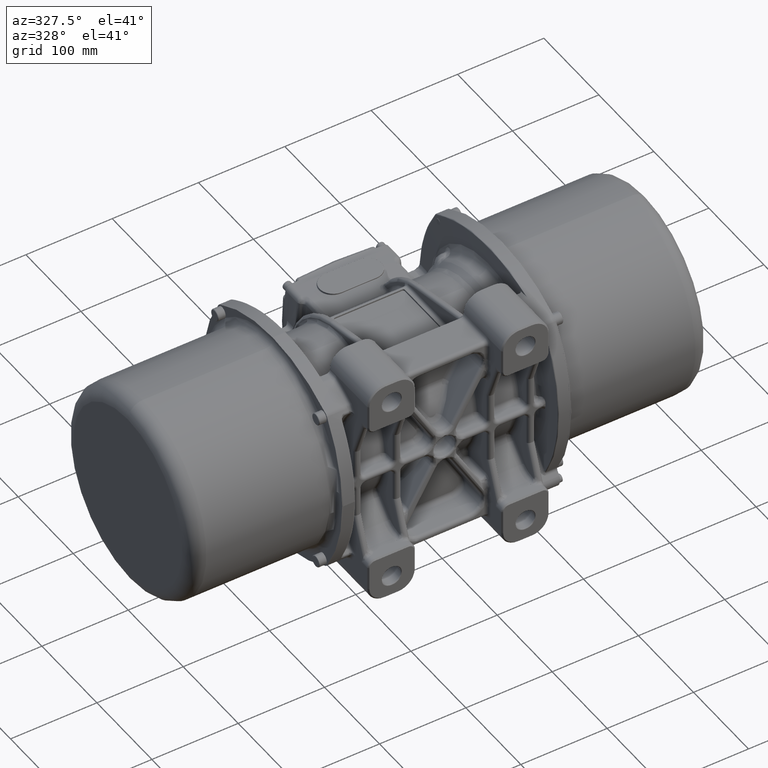
[diagram: clean part render]
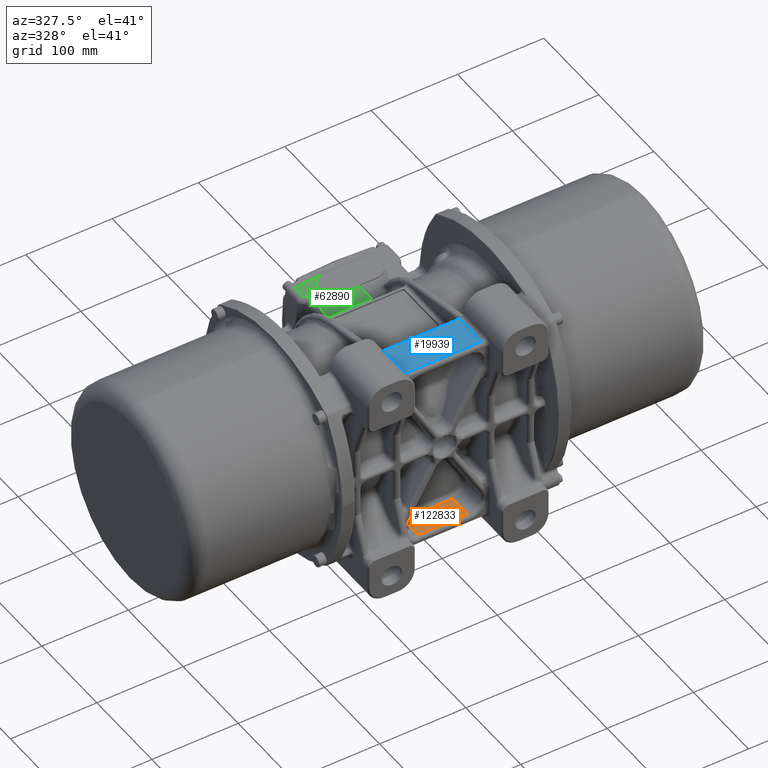
[diagram: same view with three faces highlighted in distinct colors, each labeled with its STEP entity id]
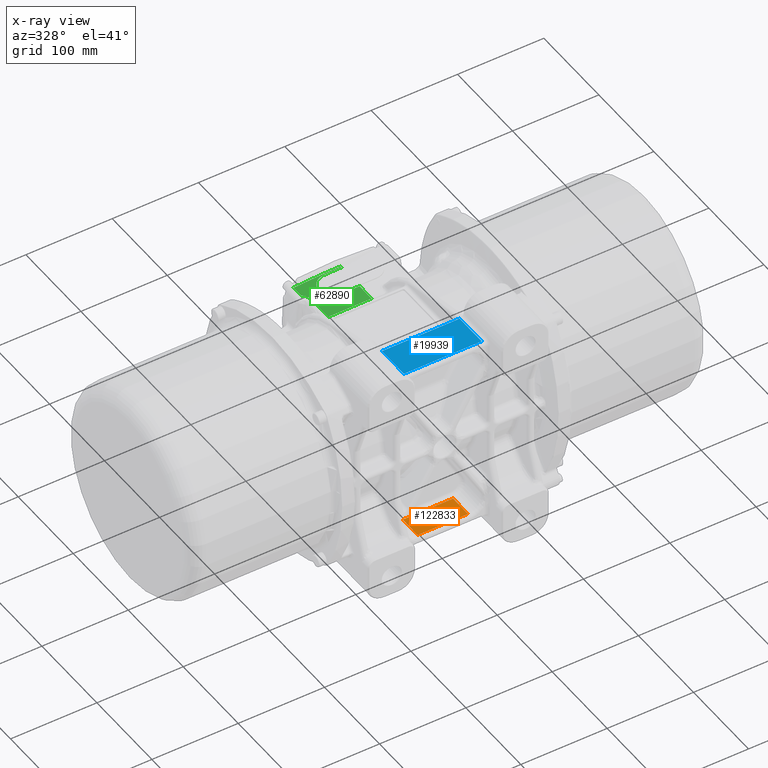
[diagram: x-ray of the same camera — body ghosted, the three highlighted faces saturated]
A machine part, auxiliary view with three faces highlighted in distinct colors.
The next image is the same camera in x-ray (body ghosted, the three faces saturated) — at least one of them is partly hidden behind the body in this view.
Their STEP definitions:

[orange] entity #122833 — the highlighted planar face has unit normal (0, 0, -1).
#3486 = EDGE_CURVE ( 'NONE', #24211, #102830, #118803, .T. ) ;
#4695 = EDGE_CURVE ( 'NONE', #82045, #102830, #26756, .T. ) ;
#9513 = EDGE_CURVE ( 'NONE', #24211, #44128, #36949, .T. ) ;
#11755 = VECTOR ( 'NONE', #12938, 1000.000000000000000 ) ;
#12758 = CARTESIAN_POINT ( 'NONE',  ( 29.15618859400000700, -101.0000000000000000, -103.5000000000006000 ) ) ;
#12938 = DIRECTION ( 'NONE',  ( -0.0000000000000000000, 1.000000000000000000, -0.0000000000000000000 ) ) ;
#20308 = EDGE_CURVE ( 'NONE', #44128, #82045, #112867, .T. ) ;
#23573 = VECTOR ( 'NONE', #54640, 1000.000000000000000 ) ;
#24211 = VERTEX_POINT ( 'NONE', #49217 ) ;
#26756 = LINE ( 'NONE', #46429, #11755 ) ;
#33808 = AXIS2_PLACEMENT_3D ( 'NONE', #137513, #127242, #105309 ) ;
#36949 = LINE ( 'NONE', #108217, #23573 ) ;
#42935 = CARTESIAN_POINT ( 'NONE',  ( -29.15618859400000700, -101.0000000000000000, -103.5000000000848400 ) ) ;
#44128 = VERTEX_POINT ( 'NONE', #12758 ) ;
#46429 = CARTESIAN_POINT ( 'NONE',  ( -29.15618859400000700, -87.50000000000000000, -103.5000000000000100 ) ) ;
#47829 = EDGE_LOOP ( 'NONE', ( #86723, #69544, #111497, #72979 ) ) ;
#49217 = CARTESIAN_POINT ( 'NONE',  ( 29.15618859400000700, -74.00000000000000000, -103.4999999999675600 ) ) ;
#54640 = DIRECTION ( 'NONE',  ( -0.0000000000000000000, -1.000000000000000000, -0.0000000000000000000 ) ) ;
#59130 = CARTESIAN_POINT ( 'NONE',  ( 0.0000000000000000000, -74.00000000000000000, -103.5000000000000100 ) ) ;
#64741 = FACE_OUTER_BOUND ( 'NONE', #47829, .T. ) ;
#69544 = ORIENTED_EDGE ( 'NONE', *, *, #3486, .T. ) ;
#72979 = ORIENTED_EDGE ( 'NONE', *, *, #20308, .F. ) ;
#81163 = VECTOR ( 'NONE', #130504, 1000.000000000000000 ) ;
#81314 = CARTESIAN_POINT ( 'NONE',  ( -29.15618859400000700, -74.00000000000000000, -103.4999999999675400 ) ) ;
#82045 = VERTEX_POINT ( 'NONE', #42935 ) ;
#86723 = ORIENTED_EDGE ( 'NONE', *, *, #9513, .F. ) ;
#94603 = PLANE ( 'NONE',  #33808 ) ;
#97880 = CARTESIAN_POINT ( 'NONE',  ( 0.0000000000000000000, -101.0000000000000000, -103.5000000000000100 ) ) ;
#101570 = DIRECTION ( 'NONE',  ( -1.000000000000000000, 0.0000000000000000000, 0.0000000000000000000 ) ) ;
#102830 = VERTEX_POINT ( 'NONE', #81314 ) ;
#105309 = DIRECTION ( 'NONE',  ( -1.000000000000000000, 0.0000000000000000000, 0.0000000000000000000 ) ) ;
#108217 = CARTESIAN_POINT ( 'NONE',  ( 29.15618859400000700, -87.50000000000000000, -103.5000000000000100 ) ) ;
#111497 = ORIENTED_EDGE ( 'NONE', *, *, #4695, .F. ) ;
#112867 = LINE ( 'NONE', #97880, #81163 ) ;
#115416 = VECTOR ( 'NONE', #101570, 1000.000000000000000 ) ;
#118803 = LINE ( 'NONE', #59130, #115416 ) ;
#122833 = ADVANCED_FACE ( 'NONE', ( #64741 ), #94603, .F. ) ;
#127242 = DIRECTION ( 'NONE',  ( 0.0000000000000000000, 0.0000000000000000000, -1.000000000000000000 ) ) ;
#130504 = DIRECTION ( 'NONE',  ( -1.000000000000000000, 0.0000000000000000000, 0.0000000000000000000 ) ) ;
#137513 = CARTESIAN_POINT ( 'NONE',  ( 29.15618859400000700, -101.0000000000000000, -103.5000000000000100 ) ) ;

[blue] entity #19939 — the highlighted planar face has unit normal (0, 0, -1).
#882 = CARTESIAN_POINT ( 'NONE',  ( -45.00000000000000000, -101.0000000000000000, 112.5000000000000000 ) ) ;
#2012 = LINE ( 'NONE', #39242, #77105 ) ;
#2548 = DIRECTION ( 'NONE',  ( 1.000000000000000000, 0.0000000000000000000, 0.0000000000000000000 ) ) ;
#6768 = EDGE_LOOP ( 'NONE', ( #87810, #121132, #102257, #131285 ) ) ;
#7989 = LINE ( 'NONE', #44330, #106472 ) ;
#9905 = PLANE ( 'NONE',  #33586 ) ;
#19246 = DIRECTION ( 'NONE',  ( 0.0000000000000000000, 1.000000000000000000, 0.0000000000000000000 ) ) ;
#19939 = ADVANCED_FACE ( 'NONE', ( #71111 ), #9905, .F. ) ;
#29469 = DIRECTION ( 'NONE',  ( 0.0000000000000000000, 0.0000000000000000000, -1.000000000000000000 ) ) ;
#33067 = DIRECTION ( 'NONE',  ( -0.0000000000000000000, -1.000000000000000000, -0.0000000000000000000 ) ) ;
#33586 = AXIS2_PLACEMENT_3D ( 'NONE', #126492, #29469, #19246 ) ;
#33623 = EDGE_CURVE ( 'NONE', #80501, #109863, #124290, .T. ) ;
#34367 = CARTESIAN_POINT ( 'NONE',  ( 0.0000000000000000000, -61.00000000000000000, 112.5000000000000000 ) ) ;
#39242 = CARTESIAN_POINT ( 'NONE',  ( -45.00000000000000000, -81.00000000000000000, 112.5000000000000000 ) ) ;
#44330 = CARTESIAN_POINT ( 'NONE',  ( 45.00000000000000000, -81.00000000000000000, 112.5000000000000000 ) ) ;
#51283 = VERTEX_POINT ( 'NONE', #109309 ) ;
#61184 = DIRECTION ( 'NONE',  ( -0.0000000000000000000, -1.000000000000000000, -0.0000000000000000000 ) ) ;
#66822 = CARTESIAN_POINT ( 'NONE',  ( 44.99999999999998600, -101.0000000000000000, 112.5000000000000100 ) ) ;
#71111 = FACE_OUTER_BOUND ( 'NONE', #6768, .T. ) ;
#77105 = VECTOR ( 'NONE', #61184, 1000.000000000000000 ) ;
#78925 = VECTOR ( 'NONE', #88564, 1000.000000000000000 ) ;
#79521 = EDGE_CURVE ( 'NONE', #136702, #109863, #7989, .T. ) ;
#80501 = VERTEX_POINT ( 'NONE', #882 ) ;
#86543 = CARTESIAN_POINT ( 'NONE',  ( 0.0000000000000000000, -101.0000000000000000, 112.5000000000000000 ) ) ;
#87810 = ORIENTED_EDGE ( 'NONE', *, *, #118417, .T. ) ;
#88564 = DIRECTION ( 'NONE',  ( -1.000000000000000000, -0.0000000000000000000, -0.0000000000000000000 ) ) ;
#89279 = VECTOR ( 'NONE', #2548, 1000.000000000000000 ) ;
#102257 = ORIENTED_EDGE ( 'NONE', *, *, #79521, .F. ) ;
#106472 = VECTOR ( 'NONE', #33067, 1000.000000000000000 ) ;
#109309 = CARTESIAN_POINT ( 'NONE',  ( -44.99999999999998600, -61.00000000000000000, 112.5000000000000000 ) ) ;
#109863 = VERTEX_POINT ( 'NONE', #66822 ) ;
#110637 = LINE ( 'NONE', #34367, #78925 ) ;
#116226 = EDGE_CURVE ( 'NONE', #136702, #51283, #110637, .T. ) ;
#118417 = EDGE_CURVE ( 'NONE', #51283, #80501, #2012, .T. ) ;
#121132 = ORIENTED_EDGE ( 'NONE', *, *, #33623, .T. ) ;
#124290 = LINE ( 'NONE', #86543, #89279 ) ;
#126492 = CARTESIAN_POINT ( 'NONE',  ( -45.00000000000000000, -101.0000000000000000, 112.5000000000000000 ) ) ;
#129688 = CARTESIAN_POINT ( 'NONE',  ( 45.00000000000000000, -61.00000000000000000, 112.5000000000000000 ) ) ;
#131285 = ORIENTED_EDGE ( 'NONE', *, *, #116226, .T. ) ;
#136702 = VERTEX_POINT ( 'NONE', #129688 ) ;

[green] entity #62890 — the highlighted cylindrical surface (partial cylindrical patch) has radius 736 mm, axis along (0, 1, -0).
#863 = CARTESIAN_POINT ( 'NONE',  ( -25.10545275765998200, 112.3267542299250900, 47.61761852174057500 ) ) ;
#1329 = CARTESIAN_POINT ( 'NONE',  ( -24.96479319164931700, 112.1740608947655900, 47.62767845040726700 ) ) ;
#1744 = CARTESIAN_POINT ( 'NONE',  ( -2.090709866972191300, 96.57696061668403300, 48.90505452337111300 ) ) ;
#1784 = CARTESIAN_POINT ( 'NONE',  ( -23.52303971844241600, 110.2356238688346400, 47.72929016975006500 ) ) ;
#2195 = CARTESIAN_POINT ( 'NONE',  ( -7.306785199317577200, 102.6882611386606400, 48.67661633649058200 ) ) ;
#2654 = CARTESIAN_POINT ( 'NONE',  ( -3.459443011328273700, 97.67880792350189300, 48.84861319280678100 ) ) ;
#3465 = EDGE_CURVE ( 'NONE', #125752, #26187, #32000, .T. ) ;
#3575 = CARTESIAN_POINT ( 'NONE',  ( 4.934489858880654700, 93.70216031952709600, 49.15401176382651700 ) ) ;
#4484 = CARTESIAN_POINT ( 'NONE',  ( -8.973362677187996200, 109.7197137528856800, 48.59570385521973200 ) ) ;
#4643 = DIRECTION ( 'NONE',  ( -0.0000000000000000000, -1.000000000000000000, -0.0000000000000000000 ) ) ;
#4932 = DIRECTION ( 'NONE',  ( 0.0000000000000000000, 1.000000000000000000, -0.0000000000000000000 ) ) ;
#4949 = CARTESIAN_POINT ( 'NONE',  ( -8.423331978783332700, 114.2679095427269500, 48.62280505161395900 ) ) ;
#5373 = VECTOR ( 'NONE', #123457, 1000.000000000000000 ) ;
#5817 = VERTEX_POINT ( 'NONE', #23329 ) ;
#5839 = CARTESIAN_POINT ( 'NONE',  ( 3.359415826246922300, 125.9718608060488000, 49.10407251818134700 ) ) ;
#7490 = VERTEX_POINT ( 'NONE', #21404 ) ;
#8949 = B_SPLINE_CURVE_WITH_KNOTS ( 'NONE', 3,
 ( #48452, #58696, #112788, #48908, #123537, #89546, #25570, #110960, #124883, #113697, #113247, #71266, #123972, #136058, #19017 ),
 .UNSPECIFIED., .F., .F.,
 ( 4, 2, 1, 1, 1, 1, 1, 2, 2, 4 ),
 ( 0.0000000000000000000, 0.2499999999999995600, 0.3749999999999993300, 0.4374999999999992200, 0.4687499999999991700, 0.4843749999999991100, 0.4921874999999991100, 0.4960937499999991100, 0.4999999999999991100, 1.000000000000000000 ),
 .UNSPECIFIED. ) ;
#10204 = CARTESIAN_POINT ( 'NONE',  ( -26.55234854487459000, 113.6403680777951600, 47.51260061480324700 ) ) ;
#11155 = CARTESIAN_POINT ( 'NONE',  ( -21.84378253900076300, 104.1692854380000200, 47.84405500701146300 ) ) ;
#11616 = CARTESIAN_POINT ( 'NONE',  ( -24.18844981847097800, 111.2510538558887700, 47.68280856270374100 ) ) ;
#12081 = CARTESIAN_POINT ( 'NONE',  ( -24.56115182170309600, 111.7183312861399700, 47.65645955422977000 ) ) ;
#12509 = CARTESIAN_POINT ( 'NONE',  ( -1.630239695819746300, 96.26948782626202200, 48.92329929086037800 ) ) ;
#12559 = CARTESIAN_POINT ( 'NONE',  ( -23.45703423271695000, 110.1234285805032000, 47.73387331975546700 ) ) ;
#12972 = CARTESIAN_POINT ( 'NONE',  ( -8.760993202309443000, 107.3063104659177900, 48.60621800320312500 ) ) ;
#12985 = CARTESIAN_POINT ( 'NONE',  ( 27.50000000000000400, 128.0000000000000000, 49.49999999988730100 ) ) ;
#13018 = CARTESIAN_POINT ( 'NONE',  ( -24.83039327393099100, 112.0238562565852600, 47.63726915106818200 ) ) ;
#13432 = CARTESIAN_POINT ( 'NONE',  ( -4.062191724461687400, 98.24961850863864800, 48.82294202899856100 ) ) ;
#13896 = CARTESIAN_POINT ( 'NONE',  ( 7.513577733007031700, 93.50000000000000000, 49.22857965774454700 ) ) ;
#14896 = AXIS2_PLACEMENT_3D ( 'NONE', #26306, #4932, #122027 ) ;
#15274 = CARTESIAN_POINT ( 'NONE',  ( 0.2106088235675071000, 124.7960197740952000, 48.99394886385437800 ) ) ;
#17734 = B_SPLINE_CURVE_WITH_KNOTS ( 'NONE', 3,
 ( #62901, #10204, #96896, #43776, #863, #1329, #22739, #85771, #64265, #65670, #13018, #12081, #11616, #75032, #64712, #1784, #97827, #12559, #107656, #128181, #118406, #34347, #108099, #22296, #107199, #119329, #76430, #23186, #86226, #44241, #21843, #86702, #54532, #33898, #23655, #11155 ),
 .UNSPECIFIED., .F., .F.,
 ( 4, 1, 1, 1, 1, 1, 1, 2, 2, 1, 1, 1, 1, 1, 1, 1, 2, 2, 2, 1, 1, 1, 1, 1, 2, 2, 4 ),
 ( 0.0000000000000000000, 0.1250000000000982500, 0.1875000000001473800, 0.2187500000001735600, 0.2343750000001856800, 0.2421875000001917400, 0.2460937500001964000, 0.2480468750002004200, 0.2500000000002044500, 0.3750000000004029000, 0.4375000000005036500, 0.4687500000005543300, 0.4843750000005780900, 0.4921875000005896400, 0.4960937500005951900, 0.4980468750005975800, 0.4990234375005966300, 0.5000000000005957500, 0.6250000000002929900, 0.6875000000001430000, 0.7187500000000680600, 0.7343750000000304200, 0.7421875000000132100, 0.7460937500000060000, 0.7480468750000038900, 0.7500000000000017800, 1.000000000000000000 ),
 .UNSPECIFIED. ) ;
#17915 = ORIENTED_EDGE ( 'NONE', *, *, #77156, .T. ) ;
#19017 = CARTESIAN_POINT ( 'NONE',  ( 27.50000000000413900, 71.62227307218196900, 49.50001045921511900 ) ) ;
#20903 = VERTEX_POINT ( 'NONE', #82407 ) ;
#21404 = CARTESIAN_POINT ( 'NONE',  ( -21.84378253900064200, 72.86078969900000900, 47.84405500700955100 ) ) ;
#21843 = CARTESIAN_POINT ( 'NONE',  ( -22.16451277012623300, 106.8919896915812700, 47.82243338695244700 ) ) ;
#22296 = CARTESIAN_POINT ( 'NONE',  ( -22.88936271656200800, 109.0565764444602200, 47.77308120876056600 ) ) ;
#22700 = CARTESIAN_POINT ( 'NONE',  ( 4.511688411890310700, 93.77572855142965100, 49.14090269131457200 ) ) ;
#22739 = CARTESIAN_POINT ( 'NONE',  ( -24.89525745653976700, 112.0968848444927600, 47.63264311283477100 ) ) ;
#23143 = CARTESIAN_POINT ( 'NONE',  ( -4.135944902037358000, 98.32292035444426400, 48.81977193986497100 ) ) ;
#23186 = CARTESIAN_POINT ( 'NONE',  ( -22.21670790907480600, 107.1047879127386600, 47.81890178147767800 ) ) ;
#23329 = CARTESIAN_POINT ( 'NONE',  ( -26.94401290300092800, 128.0000000000000000, 47.48354849299991500 ) ) ;
#23611 = CARTESIAN_POINT ( 'NONE',  ( -0.6377290729896173400, 95.64992956079484500, 48.96204227933919400 ) ) ;
#23655 = CARTESIAN_POINT ( 'NONE',  ( -21.84378253900898100, 105.0721591934647000, 47.84405500713505400 ) ) ;
#24518 = CARTESIAN_POINT ( 'NONE',  ( -1.608237073122044300, 96.25483410064617800, 48.92417057782819300 ) ) ;
#24975 = CARTESIAN_POINT ( 'NONE',  ( -0.5123538213807458100, 124.4314171848726900, 48.96699949779180400 ) ) ;
#24976 = AXIS2_PLACEMENT_3D ( 'NONE', #100488, #122435, #90698 ) ;
#25570 = CARTESIAN_POINT ( 'NONE',  ( 1.044712505033569300, 71.98558951501155400, 49.02468802758397700 ) ) ;
#25865 = CARTESIAN_POINT ( 'NONE',  ( 27.50000000000000400, 71.28400671000000000, 49.49999999988730100 ) ) ;
#25889 = CARTESIAN_POINT ( 'NONE',  ( 1.694844443101575700, 125.4479142993394300, 49.04764799063460100 ) ) ;
#26187 = VERTEX_POINT ( 'NONE', #69679 ) ;
#26306 = CARTESIAN_POINT ( 'NONE',  ( 27.50000000000000400, 126.4999999999998900, -686.4999999230257100 ) ) ;
#26329 = CARTESIAN_POINT ( 'NONE',  ( -8.837363686212244200, 112.1474656286406500, 48.60244019134082500 ) ) ;
#27370 = DIRECTION ( 'NONE',  ( 0.0000000000000000000, 1.000000000000000000, -0.0000000000000000000 ) ) ;
#27970 = CIRCLE ( 'NONE', #14896, 735.9999999229129300 ) ;
#28747 = LINE ( 'NONE', #37608, #5373 ) ;
#28927 = VERTEX_POINT ( 'NONE', #44062 ) ;
#32000 = LINE ( 'NONE', #48898, #42071 ) ;
#33395 = CARTESIAN_POINT ( 'NONE',  ( 0.3960534397387626100, 95.08919572345979500, 49.00119033489625100 ) ) ;
#33674 = FACE_OUTER_BOUND ( 'NONE', #64014, .T. ) ;
#33854 = CARTESIAN_POINT ( 'NONE',  ( -4.906386059568984800, 99.09392466490784600, 48.78661398898912400 ) ) ;
#33898 = CARTESIAN_POINT ( 'NONE',  ( -21.94789801782238200, 105.9678648342190600, 47.83708127524835900 ) ) ;
#34306 = CARTESIAN_POINT ( 'NONE',  ( -8.951315156347702000, 109.0480017905035100, 48.59679759954866500 ) ) ;
#34347 = CARTESIAN_POINT ( 'NONE',  ( -23.43754787963412400, 110.0898432399868100, 47.73522540180042000 ) ) ;
#35245 = CARTESIAN_POINT ( 'NONE',  ( 1.986910871423518200, 94.45451353302792100, 49.05766757254305300 ) ) ;
#35703 = CARTESIAN_POINT ( 'NONE',  ( 2.453739289885574300, 125.7202749968369100, 49.07402686246519600 ) ) ;
#36624 = CARTESIAN_POINT ( 'NONE',  ( -8.553734412987537900, 113.7460040102667700, 48.61641208516468300 ) ) ;
#37083 = CARTESIAN_POINT ( 'NONE',  ( 6.424549701727252100, 126.4999999999999700, 49.19899568490453100 ) ) ;
#37608 = CARTESIAN_POINT ( 'NONE',  ( -26.94401290299999700, 99.64200335500001400, 47.48354849299999400 ) ) ;
#39133 = VERTEX_POINT ( 'NONE', #12985 ) ;
#39486 = VERTEX_POINT ( 'NONE', #44495 ) ;
#40627 = ORIENTED_EDGE ( 'NONE', *, *, #110650, .T. ) ;
#41025 = LINE ( 'NONE', #121755, #112786 ) ;
#42071 = VECTOR ( 'NONE', #27370, 1000.000000000000000 ) ;
#43776 = CARTESIAN_POINT ( 'NONE',  ( -25.39312403713213900, 112.6255058386994100, 47.59697311489333100 ) ) ;
#44062 = CARTESIAN_POINT ( 'NONE',  ( -26.94401290297257000, 113.9160797830000100, 47.48354849313117400 ) ) ;
#44194 = CARTESIAN_POINT ( 'NONE',  ( -1.634638464899101000, 96.27242206875678200, 48.92312504170679700 ) ) ;
#44241 = CARTESIAN_POINT ( 'NONE',  ( -22.17085841140450200, 106.9186600298822800, 47.82200420245974500 ) ) ;
#44495 = CARTESIAN_POINT ( 'NONE',  ( 7.513577733007031700, 93.50000000000000000, 49.22857965774454700 ) ) ;
#44640 = CARTESIAN_POINT ( 'NONE',  ( -4.140448811071486500, 98.32742243919231800, 48.81957814342235500 ) ) ;
#45516 = ORIENTED_EDGE ( 'NONE', *, *, #104916, .T. ) ;
#45541 = CARTESIAN_POINT ( 'NONE',  ( -3.977469621701732500, 98.16637572504129100, 48.82657576822025200 ) ) ;
#46010 = CARTESIAN_POINT ( 'NONE',  ( 4.607172687648775500, 93.75827067703022500, 49.14388134248827100 ) ) ;
#46941 = CARTESIAN_POINT ( 'NONE',  ( -8.189840456748177300, 115.0394275105392400, 48.63416555061619600 ) ) ;
#47402 = CARTESIAN_POINT ( 'NONE',  ( 4.145175035105435100, 126.1526122558495000, 49.12936998018128100 ) ) ;
#47851 = CARTESIAN_POINT ( 'NONE',  ( -5.599334974558567000, 120.0617440153676800, 48.75559839997488600 ) ) ;
#48088 = DIRECTION ( 'NONE',  ( 0.0000000000000000000, 2.062812481431953500E-014, 1.000000000000000000 ) ) ;
#48320 = CARTESIAN_POINT ( 'NONE',  ( -6.772727304367434100, 118.2433132320039100, 48.70160466037390300 ) ) ;
#48452 = CARTESIAN_POINT ( 'NONE',  ( -21.84378253900064200, 72.86078969900000900, 47.84405500700955100 ) ) ;
#48662 = ORIENTED_EDGE ( 'NONE', *, *, #82214, .T. ) ;
#48898 = CARTESIAN_POINT ( 'NONE',  ( 27.50000000000000400, 71.28400671000000000, 49.49999999988730100 ) ) ;
#48908 = CARTESIAN_POINT ( 'NONE',  ( -7.357630896071494700, 72.24684506708223400, 48.67697133423552500 ) ) ;
#50452 = CARTESIAN_POINT ( 'NONE',  ( 27.50000000000413900, 71.62227307218196900, 49.50001045921511900 ) ) ;
#53369 = VERTEX_POINT ( 'NONE', #95960 ) ;
#53770 = DIRECTION ( 'NONE',  ( 0.0000000000000000000, 0.0000000000000000000, 1.000000000000000000 ) ) ;
#54532 = CARTESIAN_POINT ( 'NONE',  ( -22.15774674534035800, 106.8633440596852900, 47.82289096174162800 ) ) ;
#54942 = CARTESIAN_POINT ( 'NONE',  ( 2.051618378398857100, 94.43158871865937000, 49.05990989675853300 ) ) ;
#55406 = CARTESIAN_POINT ( 'NONE',  ( 2.142316094911172800, 94.39989272865391000, 49.06304459750807500 ) ) ;
#55693 = EDGE_CURVE ( 'NONE', #26187, #39486, #56681, .T. ) ;
#55850 = CARTESIAN_POINT ( 'NONE',  ( -1.515648868998036500, 96.19364146195373200, 48.92783079405685200 ) ) ;
#56306 = CARTESIAN_POINT ( 'NONE',  ( 4.066240594795142500, 93.85867764115904800, 49.12697454797869800 ) ) ;
#56681 = CIRCLE ( 'NONE', #116255, 735.9999999229129300 ) ;
#56767 = CARTESIAN_POINT ( 'NONE',  ( 5.371773925477449500, 93.63622272426911800, 49.16735088189942400 ) ) ;
#57228 = CARTESIAN_POINT ( 'NONE',  ( -1.206919962329306100, 124.0140706812003900, 48.94008318009263500 ) ) ;
#57664 = CARTESIAN_POINT ( 'NONE',  ( -8.949448391587431200, 111.0721285853692700, 48.59689191161546500 ) ) ;
#57908 = DIRECTION ( 'NONE',  ( -7.638274801566204300E-016, -1.000000000000000000, 2.062327462150192000E-014 ) ) ;
#58129 = CARTESIAN_POINT ( 'NONE',  ( -2.558196049855870200, 123.1090524545893900, 48.88650902612899100 ) ) ;
#58696 = CARTESIAN_POINT ( 'NONE',  ( -17.66654120014875700, 72.65627147717502500, 48.12474208678641900 ) ) ;
#59010 = CARTESIAN_POINT ( 'NONE',  ( -8.966533655511064200, 109.4509577493152500, 48.59604266009630200 ) ) ;
#60981 = ORIENTED_EDGE ( 'NONE', *, *, #3465, .T. ) ;
#62890 = ADVANCED_FACE ( 'NONE', ( #33674 ), #65434, .T. ) ;
#62901 = CARTESIAN_POINT ( 'NONE',  ( -26.94401290297257000, 113.9160797830000100, 47.48354849313117400 ) ) ;
#63839 = EDGE_CURVE ( 'NONE', #7490, #125752, #8949, .T. ) ;
#64014 = EDGE_LOOP ( 'NONE', ( #107759, #60981, #129894, #120988, #40627, #17915, #66486, #45516, #136755, #48662 ) ) ;
#64265 = CARTESIAN_POINT ( 'NONE',  ( -24.84591520748044500, 112.0414184549774700, 47.63616256452296200 ) ) ;
#64712 = CARTESIAN_POINT ( 'NONE',  ( -23.61263931757951100, 110.3841941660494500, 47.72306064093777400 ) ) ;
#65434 = CYLINDRICAL_SURFACE ( 'NONE', #24976, 735.9999999229129300 ) ;
#65618 = CARTESIAN_POINT ( 'NONE',  ( -1.638154209792352700, 96.27476893592431400, 48.92298575022186900 ) ) ;
#65670 = CARTESIAN_POINT ( 'NONE',  ( -24.83607606266153300, 112.0302945689036400, 47.63686405617573200 ) ) ;
#66087 = CARTESIAN_POINT ( 'NONE',  ( 1.323910972483802100, 94.69174549839895900, 49.03464826075401800 ) ) ;
#66486 = ORIENTED_EDGE ( 'NONE', *, *, #103081, .F. ) ;
#66555 = CARTESIAN_POINT ( 'NONE',  ( -2.742889003331828900, 97.06042125490161300, 48.87858951984148300 ) ) ;
#67490 = CARTESIAN_POINT ( 'NONE',  ( 2.324084422086000400, 94.33788770554939200, 49.06929803623359700 ) ) ;
#69679 = CARTESIAN_POINT ( 'NONE',  ( 27.50000000000000400, 93.50000000000002800, 49.49999999967789700 ) ) ;
#69745 = CARTESIAN_POINT ( 'NONE',  ( 0.6988947084260108700, 125.0273672970324600, 49.01190367068780800 ) ) ;
#71266 = CARTESIAN_POINT ( 'NONE',  ( 2.749694472830463100, 71.94093891983975200, 49.08373188004237200 ) ) ;
#71996 = CARTESIAN_POINT ( 'NONE',  ( 7.513577732915611500, 126.4999999999999700, 49.22857965772114100 ) ) ;
#75032 = CARTESIAN_POINT ( 'NONE',  ( -23.79729764728467200, 110.6778258899863500, 47.71019290542489700 ) ) ;
#76375 = CARTESIAN_POINT ( 'NONE',  ( -3.806640577206887900, 98.00158857213874300, 48.83387728936659800 ) ) ;
#76430 = CARTESIAN_POINT ( 'NONE',  ( -22.28165389931989900, 107.3514531292105700, 47.81450310163325000 ) ) ;
#76837 = CARTESIAN_POINT ( 'NONE',  ( -8.441414409614743900, 105.7037450509554500, 48.62193562096364000 ) ) ;
#77156 = EDGE_CURVE ( 'NONE', #20903, #39133, #135099, .T. ) ;
#77736 = CARTESIAN_POINT ( 'NONE',  ( 1.966022568811255400, 94.46196578958071700, 49.05694274550611300 ) ) ;
#78182 = CARTESIAN_POINT ( 'NONE',  ( 2.006316131779478000, 94.44761008327532200, 49.05834056579126200 ) ) ;
#78881 = CARTESIAN_POINT ( 'NONE',  ( 27.50000000000000400, 93.49999999998486500, -686.4999999230257100 ) ) ;
#79108 = CARTESIAN_POINT ( 'NONE',  ( -8.758081891743286100, 112.6829416051345900, 48.60635493951492200 ) ) ;
#80020 = CARTESIAN_POINT ( 'NONE',  ( -7.287081952864341800, 117.2932355036277100, 48.67747769254262400 ) ) ;
#80483 = CARTESIAN_POINT ( 'NONE',  ( -8.105695292929722100, 115.2947101113302900, 48.63824731443698800 ) ) ;
#82214 = EDGE_CURVE ( 'NONE', #53369, #7490, #41025, .T. ) ;
#82407 = CARTESIAN_POINT ( 'NONE',  ( 27.50000000000000400, 126.4999999999998900, 49.49999999988730100 ) ) ;
#85771 = CARTESIAN_POINT ( 'NONE',  ( -24.86068810458745700, 112.0580894736831000, 47.63510916697001800 ) ) ;
#86226 = CARTESIAN_POINT ( 'NONE',  ( -22.18586919509821300, 106.9808101785013000, 47.82098875961562400 ) ) ;
#86702 = CARTESIAN_POINT ( 'NONE',  ( -22.16030179858254500, 106.8742017859757600, 47.82271817594135400 ) ) ;
#87130 = CARTESIAN_POINT ( 'NONE',  ( 6.249294428600536300, 93.53478027002617500, 49.19344792659246900 ) ) ;
#87586 = CARTESIAN_POINT ( 'NONE',  ( -8.840984702283167400, 107.8414485191395600, 48.60226206652935600 ) ) ;
#88035 = CARTESIAN_POINT ( 'NONE',  ( -5.589733614427532700, 99.92846137039052200, 48.75603405007379400 ) ) ;
#88497 = CARTESIAN_POINT ( 'NONE',  ( -1.391753964254939900, 96.11293577358870300, 48.93271300861264500 ) ) ;
#88950 = CARTESIAN_POINT ( 'NONE',  ( -8.975611855844196200, 110.5316410771228300, 48.59559224606508100 ) ) ;
#89546 = CARTESIAN_POINT ( 'NONE',  ( -0.7290542875395847900, 72.03467671298318500, 48.95966823158678200 ) ) ;
#89857 = CARTESIAN_POINT ( 'NONE',  ( -8.711453124741353800, 112.9518053806985900, 48.60865416813651800 ) ) ;
#90698 = DIRECTION ( 'NONE',  ( 0.0000000000000000000, 0.0000000000000000000, 1.000000000000000000 ) ) ;
#95960 = CARTESIAN_POINT ( 'NONE',  ( -21.84378253900076300, 104.1692854380000200, 47.84405500701146300 ) ) ;
#96124 = CARTESIAN_POINT ( 'NONE',  ( 27.50000000000000400, 128.0000000000000000, -686.4999999230257100 ) ) ;
#96896 = CARTESIAN_POINT ( 'NONE',  ( -25.99387324318036000, 113.1964688100696000, 47.55355444027433300 ) ) ;
#97315 = CARTESIAN_POINT ( 'NONE',  ( 3.425135537684385900, 94.00469236029941600, 49.10635748436487100 ) ) ;
#97531 = DIRECTION ( 'NONE',  ( 0.0000000000000000000, 1.000000000000000000, -0.0000000000000000000 ) ) ;
#97777 = CARTESIAN_POINT ( 'NONE',  ( -4.143483728418730500, 98.33045673801075300, 48.81944755057779900 ) ) ;
#97827 = CARTESIAN_POINT ( 'NONE',  ( -23.47892232558960800, 110.1609001114155400, 47.73235406387816200 ) ) ;
#98245 = CARTESIAN_POINT ( 'NONE',  ( -8.921171722890211000, 108.6455799713236300, 48.59829204414424500 ) ) ;
#98695 = CARTESIAN_POINT ( 'NONE',  ( -4.143450901911806200, 98.33042446087489500, 48.81944895875351200 ) ) ;
#99608 = CARTESIAN_POINT ( 'NONE',  ( 7.513577732915611500, 126.4999999999999700, 49.22857965772114100 ) ) ;
#100076 = CARTESIAN_POINT ( 'NONE',  ( -7.924775031551921400, 115.8014952026198500, 48.64698769416211400 ) ) ;
#100488 = CARTESIAN_POINT ( 'NONE',  ( 27.50000000000000400, 71.28400671000000000, -686.4999999230257100 ) ) ;
#100535 = CARTESIAN_POINT ( 'NONE',  ( 0.9475482776548396200, 125.1377431230600100, 49.02092386064674700 ) ) ;
#100984 = CARTESIAN_POINT ( 'NONE',  ( -3.388532310415459700, 122.4259732181002400, 48.85194556162460300 ) ) ;
#101455 = CARTESIAN_POINT ( 'NONE',  ( -6.905731172358800400, 118.0081330872241700, 48.69539025797071500 ) ) ;
#102787 = DIRECTION ( 'NONE',  ( 0.0000000000000000000, 1.000000000000000000, -0.0000000000000000000 ) ) ;
#103081 = EDGE_CURVE ( 'NONE', #5817, #39133, #130868, .T. ) ;
#104916 = EDGE_CURVE ( 'NONE', #5817, #28927, #28747, .T. ) ;
#106752 = VECTOR ( 'NONE', #102787, 1000.000000000000000 ) ;
#107199 = CARTESIAN_POINT ( 'NONE',  ( -22.56957414812901800, 108.2492060474954500, 47.79493336124940600 ) ) ;
#107656 = CARTESIAN_POINT ( 'NONE',  ( -23.44613283740249400, 110.1046654019962300, 47.73462977816850400 ) ) ;
#107759 = ORIENTED_EDGE ( 'NONE', *, *, #63839, .T. ) ;
#108052 = CARTESIAN_POINT ( 'NONE',  ( -1.623640692785036000, 96.26508815479647300, 48.92356066859322500 ) ) ;
#108099 = CARTESIAN_POINT ( 'NONE',  ( -23.14239544404458500, 109.5790945894508200, 47.75570066945502400 ) ) ;
#108522 = CARTESIAN_POINT ( 'NONE',  ( -6.798552484807860500, 101.7384926230645200, 48.70063613625595900 ) ) ;
#108967 = CARTESIAN_POINT ( 'NONE',  ( 4.529321314921841900, 93.77246809194322500, 49.14145353776404300 ) ) ;
#109428 = CARTESIAN_POINT ( 'NONE',  ( 1.973976250783091100, 94.45912408855883800, 49.05721881658995900 ) ) ;
#109903 = CARTESIAN_POINT ( 'NONE',  ( 4.716216897340801000, 93.73893320919016500, 49.14727011744175700 ) ) ;
#110650 = EDGE_CURVE ( 'NONE', #137106, #20903, #27970, .T. ) ;
#110960 = CARTESIAN_POINT ( 'NONE',  ( 1.930179145474829200, 71.96209047268291700, 49.05577372838386900 ) ) ;
#111279 = CARTESIAN_POINT ( 'NONE',  ( 3.751912870079656200, 126.0655043661677300, 49.11677904940871300 ) ) ;
#112200 = CARTESIAN_POINT ( 'NONE',  ( -4.917175274477645400, 120.8943515255956000, 48.78614295168907900 ) ) ;
#112448 = B_SPLINE_CURVE_WITH_KNOTS ( 'NONE', 3,
 ( #13896, #119728, #87130, #56767, #3575, #109903, #46010, #131321, #108967, #22700, #56306, #97315, #118824, #67490, #55406, #54942, #78182, #35245, #109428, #77736, #66087, #33395, #23611, #129501, #88497, #55850, #130407, #24518, #108052, #12509, #44194, #65618, #1744, #66555, #2654, #76375, #45541, #13432, #129963, #119284, #23143, #44640, #98695, #97777, #33854, #88035, #108522, #2195, #120203, #76837, #12972, #87586, #98245, #34306, #59010, #4484, #132273, #88950, #57664, #133655, #26329, #79108, #89857, #36624, #4949, #46941, #80483, #100076, #131795, #122047, #80020, #101455, #48320, #122937, #122491, #47851, #112200, #100984, #58129, #57228, #24975, #15274, #69745, #100535, #25889, #35703, #5839, #111279, #121606, #47402, #132719, #37083, #99608 ),
 .UNSPECIFIED., .F., .F.,
 ( 4, 1, 1, 1, 1, 1, 2, 2, 1, 1, 1, 1, 1, 1, 2, 2, 1, 1, 1, 1, 1, 1, 1, 1, 2, 2, 1, 1, 1, 1, 1, 1, 1, 1, 2, 2, 2, 2, 2, 2, 1, 2, 2, 2, 2, 2, 2, 2, 2, 2, 2, 2, 2, 2, 1, 2, 2, 1, 1, 2, 2, 4 ),
 ( 0.0000000000000000000, 0.01562499999998479300, 0.02343749999997720200, 0.02734374999997343800, 0.02929687499997155100, 0.03027343749997059600, 0.03076171874997007300, 0.03124999999996954900, 0.04687499999995394000, 0.05468749999994619600, 0.05859374999994233800, 0.06054687499994040900, 0.06152343749993945100, 0.06201171874993888200, 0.06225585937493868100, 0.06249999999993848000, 0.09374999999992901500, 0.1093749999999243000, 0.1171874999999219200, 0.1210937499999207300, 0.1230468749999201300, 0.1240234374999196600, 0.1245117187499194300, 0.1247558593749193100, 0.1248779296874192600, 0.1249999999999191800, 0.1874999999998702400, 0.2187499999998457900, 0.2343749999998335500, 0.2421874999998274200, 0.2460937499998248900, 0.2480468749998235900, 0.2490234374998229500, 0.2495117187498226700, 0.2497558593748231100, 0.2499999999998235300, 0.3124999999998411800, 0.3749999999998588400, 0.4374999999998765400, 0.4687499999998849800, 0.4843749999998892000, 0.4921874999998909200, 0.4999999999998926400, 0.5312499999999018600, 0.5468749999999064100, 0.5624999999999109600, 0.5937499999999194000, 0.6093749999999231700, 0.6249999999999269500, 0.6562499999999346100, 0.6718749999999380500, 0.6874999999999414900, 0.7499999999999540400, 0.8124999999999666900, 0.8437499999999726900, 0.8593749999999756900, 0.8749999999999783500, 0.9062499999999842300, 0.9218749999999874500, 0.9296874999999887900, 0.9374999999999902300, 1.000000000000000000 ),
 .UNSPECIFIED. ) ;
#112786 = VECTOR ( 'NONE', #4643, 1000.000000000000000 ) ;
#112788 = CARTESIAN_POINT ( 'NONE',  ( -13.52258582324697600, 72.47722054146747400, 48.36739069077567200 ) ) ;
#113247 = CARTESIAN_POINT ( 'NONE',  ( 2.688399090507077400, 71.94250180272557300, 49.08166674695370800 ) ) ;
#113697 = CARTESIAN_POINT ( 'NONE',  ( 2.562072746906810700, 71.94573445678953800, 49.07739482547802400 ) ) ;
#114892 = EDGE_CURVE ( 'NONE', #28927, #53369, #17734, .T. ) ;
#116255 = AXIS2_PLACEMENT_3D ( 'NONE', #78881, #57908, #48088 ) ;
#118406 = CARTESIAN_POINT ( 'NONE',  ( -23.43836339006291100, 110.0912520358755300, 47.73516882340133800 ) ) ;
#118824 = CARTESIAN_POINT ( 'NONE',  ( 2.689112661050284000, 94.21942548696564800, 49.08174011630999400 ) ) ;
#119284 = CARTESIAN_POINT ( 'NONE',  ( -4.125430371543141700, 98.31242212446299800, 48.82022426754079400 ) ) ;
#119329 = CARTESIAN_POINT ( 'NONE',  ( -22.42461992545480600, 107.8396225541433600, 47.80480386163522200 ) ) ;
#119728 = CARTESIAN_POINT ( 'NONE',  ( 7.006515354137900600, 93.50000000000000000, 49.21480506297788800 ) ) ;
#120203 = CARTESIAN_POINT ( 'NONE',  ( -8.129259674664638200, 104.6732216093393100, 48.63721532711982600 ) ) ;
#120988 = ORIENTED_EDGE ( 'NONE', *, *, #129720, .T. ) ;
#121606 = CARTESIAN_POINT ( 'NONE',  ( 4.014544235720375600, 126.1247825330152400, 49.12521070780484700 ) ) ;
#121755 = CARTESIAN_POINT ( 'NONE',  ( -21.84378253900192800, 99.64200335500000000, 47.84405500702867200 ) ) ;
#122027 = DIRECTION ( 'NONE',  ( 5.151374496592410000E-014, 0.0000000000000000000, -1.000000000000000000 ) ) ;
#122047 = CARTESIAN_POINT ( 'NONE',  ( -7.517768074778874000, 116.8041609155538200, 48.66651101968216900 ) ) ;
#122435 = DIRECTION ( 'NONE',  ( 0.0000000000000000000, 1.000000000000000000, -0.0000000000000000000 ) ) ;
#122491 = CARTESIAN_POINT ( 'NONE',  ( -6.349540996982161000, 118.9373145747283800, 48.72121238010188900 ) ) ;
#122937 = CARTESIAN_POINT ( 'NONE',  ( -6.494944830243720300, 118.7074354220586800, 48.71450139266086400 ) ) ;
#123457 = DIRECTION ( 'NONE',  ( -0.0000000000000000000, -1.000000000000000000, -0.0000000000000000000 ) ) ;
#123537 = CARTESIAN_POINT ( 'NONE',  ( -4.287896495406122300, 72.14120756218366600, 48.81816318249131800 ) ) ;
#123972 = CARTESIAN_POINT ( 'NONE',  ( 11.13541824913834300, 71.72794464872899300, 49.36514578790891500 ) ) ;
#124883 = CARTESIAN_POINT ( 'NONE',  ( 2.372557883222608900, 71.95060209068287800, 49.07096165136779600 ) ) ;
#125752 = VERTEX_POINT ( 'NONE', #50452 ) ;
#128181 = CARTESIAN_POINT ( 'NONE',  ( -23.44146995039056200, 110.0966181655537900, 47.73495329579628800 ) ) ;
#129464 = AXIS2_PLACEMENT_3D ( 'NONE', #96124, #97531, #53770 ) ;
#129501 = CARTESIAN_POINT ( 'NONE',  ( -1.142441966419852900, 95.95455695648672600, 48.94248333613073500 ) ) ;
#129720 = EDGE_CURVE ( 'NONE', #39486, #137106, #112448, .T. ) ;
#129894 = ORIENTED_EDGE ( 'NONE', *, *, #55693, .T. ) ;
#129963 = CARTESIAN_POINT ( 'NONE',  ( -4.104379672855793100, 98.29145220222382300, 48.82112946600275200 ) ) ;
#130407 = CARTESIAN_POINT ( 'NONE',  ( -1.577406050103410000, 96.23437337608974900, 48.92539050645023500 ) ) ;
#130868 = CIRCLE ( 'NONE', #129464, 735.9999999229129300 ) ;
#131321 = CARTESIAN_POINT ( 'NONE',  ( 4.560459227629279700, 93.76676195389207200, 49.14242517106112700 ) ) ;
#131795 = CARTESIAN_POINT ( 'NONE',  ( -7.828480237845755400, 116.0518347349286800, 48.65162329638442900 ) ) ;
#132273 = CARTESIAN_POINT ( 'NONE',  ( -8.975117955598159700, 109.8528994844693500, 48.59561675324241000 ) ) ;
#132719 = CARTESIAN_POINT ( 'NONE',  ( 5.346230227286659100, 126.3931114633383100, 49.16728308385531000 ) ) ;
#133655 = CARTESIAN_POINT ( 'NONE',  ( -8.870364686217772700, 111.8791011989245700, 48.60080755560694900 ) ) ;
#135099 = LINE ( 'NONE', #25865, #106752 ) ;
#136058 = CARTESIAN_POINT ( 'NONE',  ( 19.36544857034701300, 71.62227307236395300, 49.49999999988731500 ) ) ;
#136755 = ORIENTED_EDGE ( 'NONE', *, *, #114892, .T. ) ;
#137106 = VERTEX_POINT ( 'NONE', #71996 ) ;